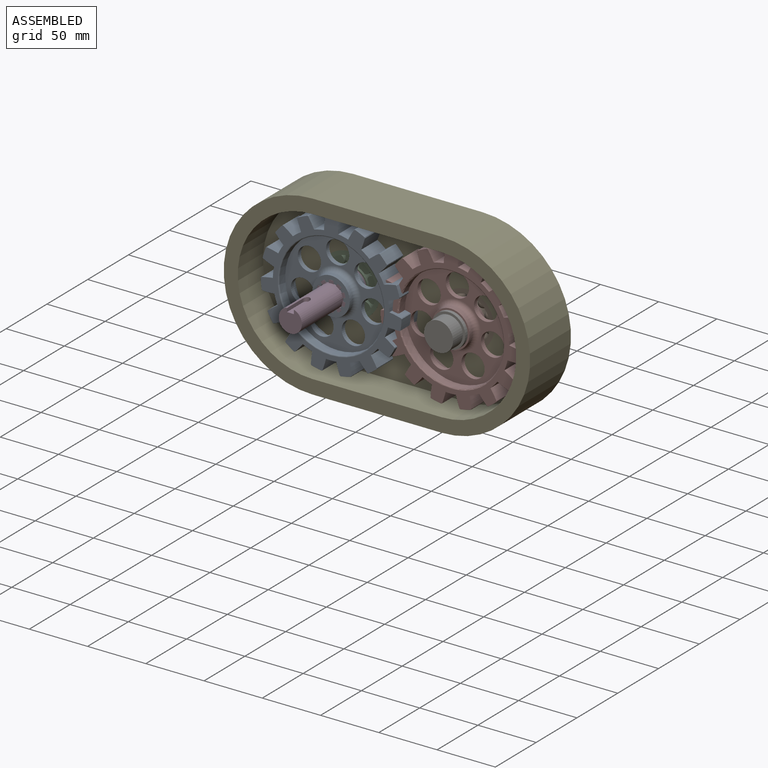
[diagram: assembled view]
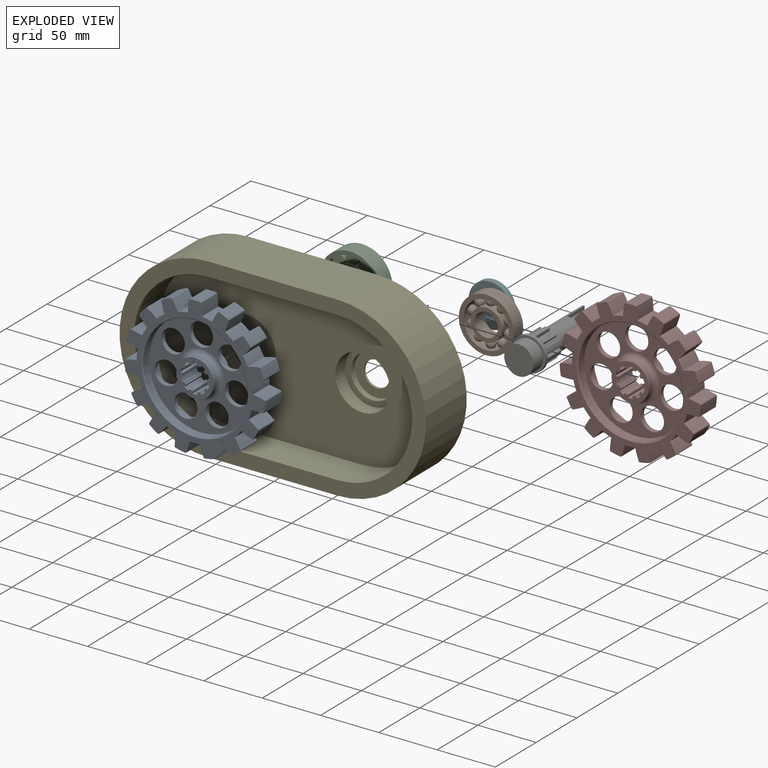
[diagram: exploded view]
GUIDED TOUR — MATED ASSEMBLY (Onshape document 9e6209f3939cb1e09e4f1f23, AutoMate assembly 9e6209f3939cb1e09e4f1f23_bf74c1615100c7fbdbf66b52_d9da05bd874bb70b420e9326_default)

This assembly has 8 components, labeled P0..P7 below (a component is one placed occurrence of a part; the same part can appear more than once), held together by 6 mates. A mate is a constraint between two components; its type names the relative motion it leaves free:
  FASTENED — locks the two components together rigidly (no relative motion),
  REVOLUTE — leaves rotation about the listed axis free (a hinge).
Axis/direction vectors are unit vectors and 'through' points are millimeter coordinates, both in the assembly's world frame.

MATES
  1. FASTENED "Fastened 2": P0 <-> P3, direction (0.000, 1.000, 0.000) through (-44.32, 3.27, -0.15) mm
  2. FASTENED "Fastened 1": P2 <-> P4, direction (0.000, 1.000, 0.000) through (-44.32, 21.27, -0.15) mm
  3. FASTENED "Fastened 4": P6 <-> P7, direction (0.000, 1.000, 0.000) through (56.14, -13.48, -0.15) mm
  4. FASTENED "Fastened 3": P5 <-> P4, direction (0.000, 1.000, 0.000) through (56.14, 23.27, -0.15) mm
  5. REVOLUTE "Revolute 2": P7 <-> P1, axis (0.000, 1.000, 0.000) through (56.14, 6.52, -0.15) mm
  6. REVOLUTE "Revolute 1": P3 <-> P2, axis (0.000, 1.000, 0.000) through (-44.32, 6.27, -0.15) mm

ASSEMBLY ORDER
  1. P2 — the base component [order heuristic]
  2. P1 [order heuristic]
  3. P3 [order heuristic]
  4. P4 [order heuristic]
  5. P6 [order heuristic]
  6. P7 [order heuristic]
  7. P0 [order heuristic]
  8. P5 [order heuristic]
Order-tag legend:
  [order heuristic] — this assembly is geometrically interlocked (no collision-free removal order exists), so components are listed in mate-graph order; insertion feasibility is not verified.

Of the 8 components, 4 carry the full construction recipe — the FeatureScript program that regenerates the part's solid from scratch; the rest are supplied as boundary geometry only.
Each toured component is shown spotlighted twice — in the assembled view, then in the exploded view, where a leader line traces a displaced component back to its assembled socket (saturated green if recipe-attached, orange if geometry-only; every other component desaturated gray) — followed by its recipe or geometry summary and the mates that hold it.
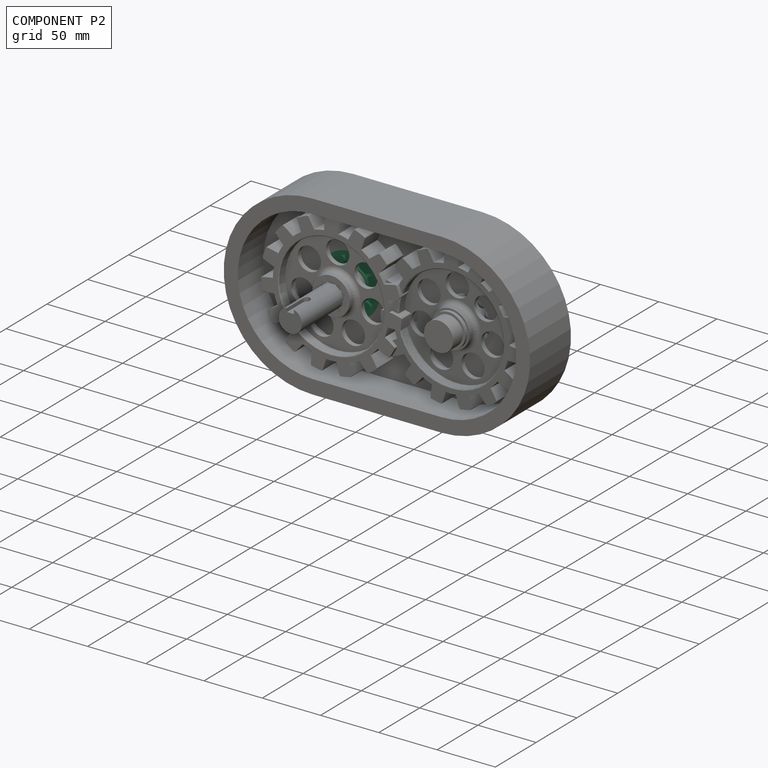
[diagram: component P2 — assembled]
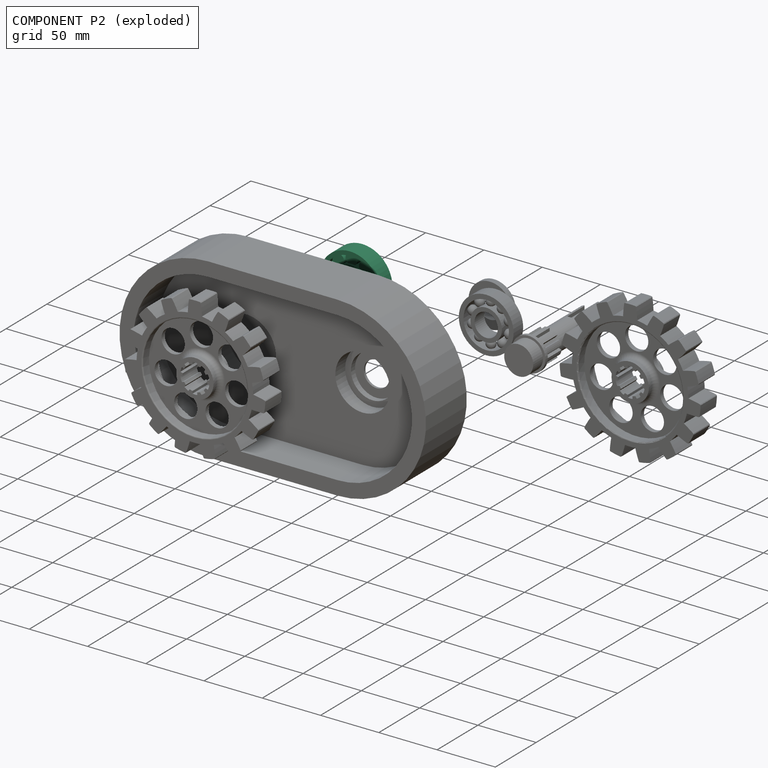
[diagram: component P2 — exploded]
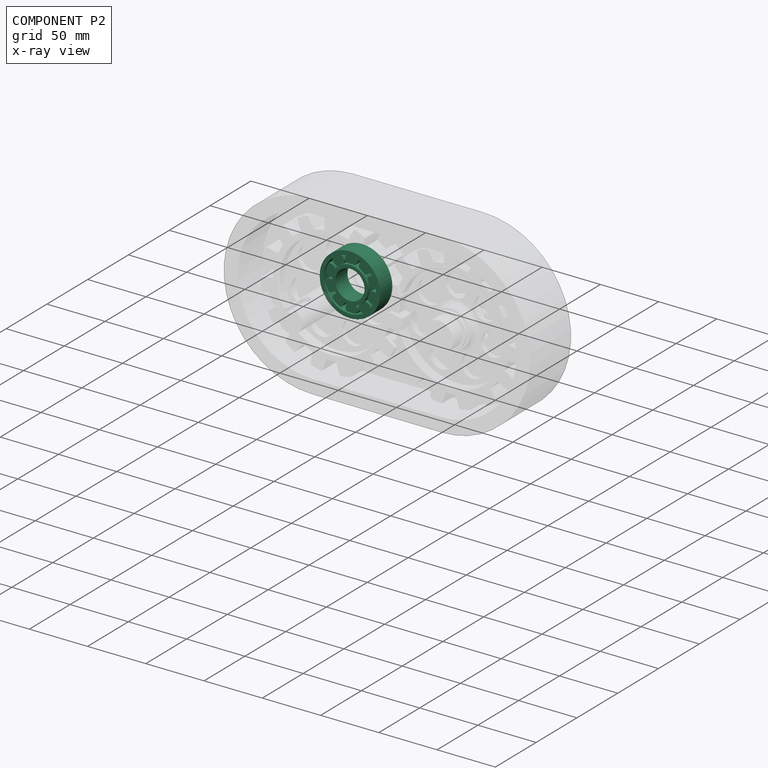
[diagram: component P2 — x-ray view]
COMPONENT P2 — recipe-attached (CADFS 00458496, mesh-verified: the recipe's output STEP matches this component's geometry to below the mesh-comparison resolution (tessellation chordal tolerance ~0.113 mm)).
Held by: FASTENED mate "Fastened 1" to P4; REVOLUTE mate "Revolute 1" to P3.
Construction recipe (FeatureScript — the CAD program that rebuilds this solid; sketch coordinates are in the units given by the * unit suffixes, e.g. mm):

FeatureScript 1549;
import(path : "onshape/std/geometry.fs", version : "1549.0");
import(path : "onshape/std/common.fs", version : "1549.0");
const mm = millimeter;
const VERTEX = EntityType.VERTEX;
const EDGE = EntityType.EDGE;
const FACE = EntityType.FACE;
const BODY = EntityType.BODY;
function v(x, y){return vector(x, y);}
function OD(order){return orderDisambiguation(order);}
function OSD(set){return originalSetDisambiguation(set);}
function TD(topology){return topologyDisambiguation(topology);}
function TDD(query){return trueDependencyDisambiguation(query);}
function sQuery(a, b, c) {return sketchEntityQuery(a, b, c);}

annotation { "Feature Type Name" : "Feature", "Feature Type Description" : "" }
export const myFeature = defineFeature(function(context is Context, id is Id, definition is map)
    precondition{}
    {
        {
            var Q0;
            Q0=qCreatedBy(makeId("Front.planeOp"),FACE);
            var sketch = newSketch(context, id + "F0", { "sketchPlane" : qUnion([Q0])});
            skCircle(sketch, "E0", {"center": v(0, 0) * mm, "radius": 12.5 * mm});
            skCircle(sketch, "E1", {"center": v(0, 0) * mm, "radius": 26 * mm});
            skLineSegment(sketch, "E2.anchor2", {"start": v(0, -14.42) * mm, "end": v(0, -15.5) * mm, "construction": true});
            skPoint(sketch, "E3.orphan", {"position": v(9.11, 12.54) * mm});
            skPoint(sketch, "E4.orphan", {"position": v(14.74, 4.79) * mm});
            skPoint(sketch, "E5.orphan", {"position": v(14.74, -4.79) * mm});
            skPoint(sketch, "E6.orphan", {"position": v(9.11, -12.54) * mm});
            skPoint(sketch, "E7.orphan", {"position": v(0, -22.5) * mm});
            skPoint(sketch, "E8.orphan", {"position": v(0, 22.5) * mm});
            skPoint(sketch, "E2.anchor1.end.orphan", {"position": v(0, 15.5) * mm});
            skCircle(sketch, "E9", {"center": v(0, 0) * mm, "radius": 15.5 * mm});
            skCircle(sketch, "E10", {"center": v(0, 0) * mm, "radius": 22.5 * mm});
            skSolve(sketch);
        }
        {
            var Q0;
            Q0=makeQuery(id+"F0.imprint","IMPRINT",FACE,{"disambiguationData":[TD([[makeQuery(id+"F0.imprint","IMPRINT",EDGE,{"derivedFrom":sQuery(id+"F0.wireOp",EDGE,"E1")}),1.0]])]});
            extrude(context, id + "F1", {"entities" : qUnion([Q0]), "oppositeDirection" : true, "depth" : 15 * mm, "offsetDistance" : 25 * mm});
        }
        {
            var Q0;
            Q0=qCreatedBy(makeId("Front.planeOp"),FACE);
            cPlane(context, id + "F2", {"entities" : qUnion([Q0]), "cplaneType" : CPlaneType.OFFSET, "offset" : 2 * mm, "oppositeDirection" : true, "width" : 150 * mm, "height" : 150 * mm});
        }
        {
            var Q0;
            Q0=qCreatedBy(id+"F2.planeOp",FACE);
            var sketch = newSketch(context, id + "F3", { "sketchPlane" : qUnion([Q0])});
            skCircle(sketch, "E11", {"center": v(0, -19.42) * mm, "radius": 5.04 * mm});
            skCircle(sketch, "E12.1.0", {"center": v(11.41, -15.7) * mm, "radius": 5.04 * mm});
            skCircle(sketch, "E12.2.0", {"center": v(18.47, -6) * mm, "radius": 5.04 * mm});
            skCircle(sketch, "E12.3.0", {"center": v(18.47, 6) * mm, "radius": 5.04 * mm});
            skCircle(sketch, "E12.4.0", {"center": v(11.41, 15.7) * mm, "radius": 5.04 * mm});
            skCircle(sketch, "E12.5.0", {"center": v(0, 19.42) * mm, "radius": 5.04 * mm});
            skCircle(sketch, "E12.6.0", {"center": v(-11.41, 15.7) * mm, "radius": 5.04 * mm});
            skCircle(sketch, "E12.7.0", {"center": v(-18.47, 6) * mm, "radius": 5.04 * mm});
            skCircle(sketch, "E12.8.0", {"center": v(-18.47, -6) * mm, "radius": 5.04 * mm});
            skCircle(sketch, "E12.9.0", {"center": v(-11.41, -15.7) * mm, "radius": 5.04 * mm});
            skPoint(sketch, "E12.center", {"position": v(0, 0) * mm});
            skSolve(sketch);
        }
        {
            var Q0;
            Q0 = qSketchRegion(id + "F3", true);
            extrude(context, id + "F4", {"entities" : qUnion([Q0]), "operationType" : NewBodyOperationType.ADD, "oppositeDirection" : true, "depth" : 11 * mm});
        }
        {
            var Q0;
            Q0=makeQuery(id+"F0.imprint","IMPRINT",FACE,{"disambiguationData":[TD([[makeQuery(id+"F0.imprint","IMPRINT",EDGE,{"derivedFrom":sQuery(id+"F0.wireOp",EDGE,"E0")}),-1.0]])]});
            extrude(context, id + "F5", {"entities" : qUnion([Q0]), "operationType" : NewBodyOperationType.ADD, "oppositeDirection" : true, "depth" : 15 * mm});
        }
    });
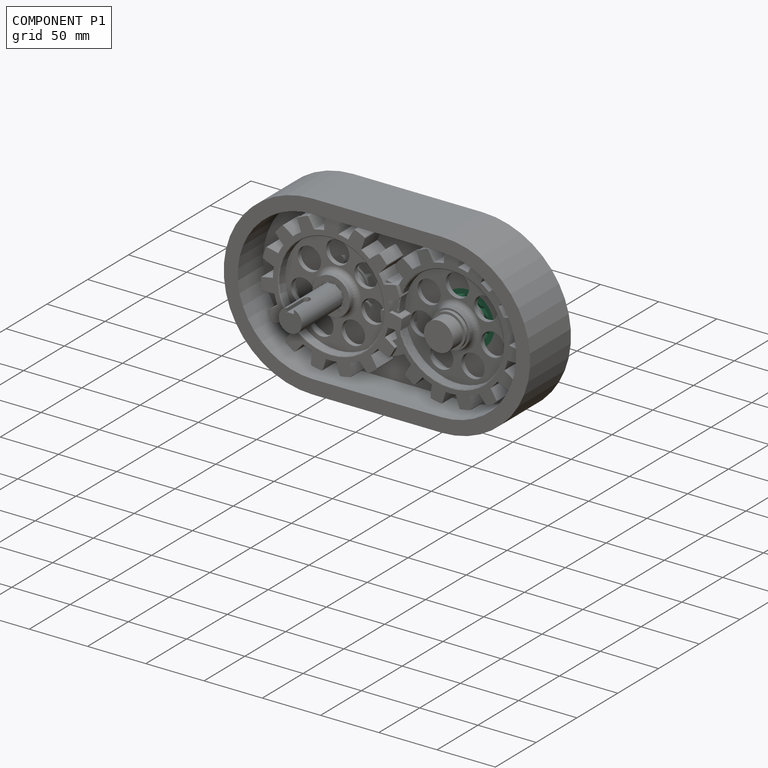
[diagram: component P1 — assembled]
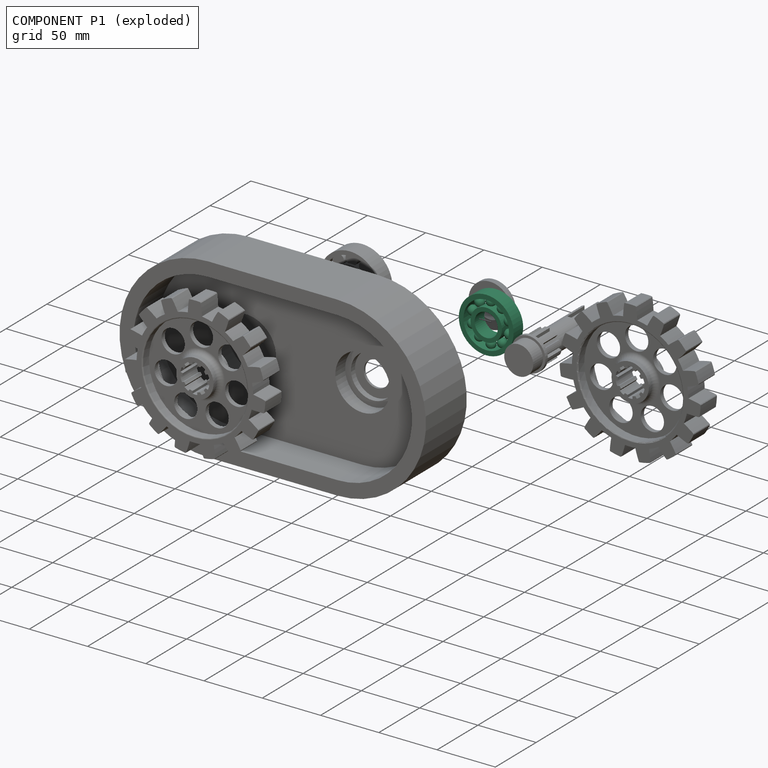
[diagram: component P1 — exploded]
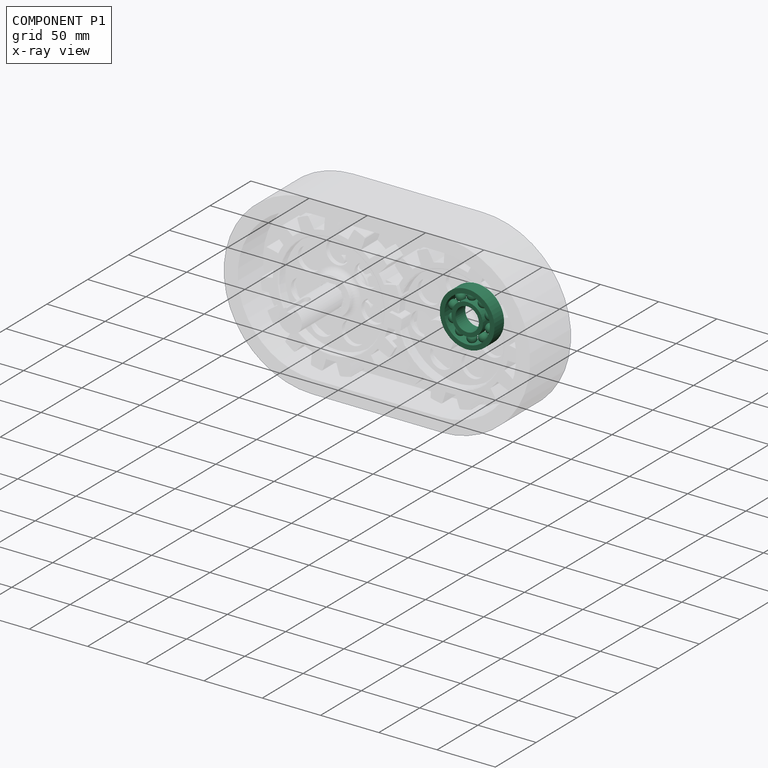
[diagram: component P1 — x-ray view]
COMPONENT P1 — recipe-attached (CADFS 00568547, mesh-verified: the recipe's output STEP matches this component's geometry to below the mesh-comparison resolution (tessellation chordal tolerance ~0.101 mm)).
Held by: REVOLUTE mate "Revolute 2" to P7.
Construction recipe (FeatureScript — the CAD program that rebuilds this solid; sketch coordinates are in the units given by the * unit suffixes, e.g. mm):

FeatureScript 1511;
import(path : "onshape/std/geometry.fs", version : "1511.0");
import(path : "onshape/std/common.fs", version : "1511.0");
const mm = millimeter;
const VERTEX = EntityType.VERTEX;
const EDGE = EntityType.EDGE;
const FACE = EntityType.FACE;
const BODY = EntityType.BODY;
function v(x, y){return vector(x, y);}
function OD(order){return orderDisambiguation(order);}
function OSD(set){return originalSetDisambiguation(set);}
function TD(topology){return topologyDisambiguation(topology);}
function TDD(query){return trueDependencyDisambiguation(query);}
function sQuery(a, b, c) {return sketchEntityQuery(a, b, c);}

annotation { "Feature Type Name" : "Feature", "Feature Type Description" : "" }
export const myFeature = defineFeature(function(context is Context, id is Id, definition is map)
    precondition{}
    {
        {
            var Q0;
            Q0=qCreatedBy(makeId("Right.planeOp"),FACE);
            var sketch = newSketch(context, id + "F0", { "sketchPlane" : qUnion([Q0])});
            skLineSegment(sketch, "E0.bottom", {"start": v(0, 23.5) * mm, "end": v(11.74, 23.5) * mm});
            skLineSegment(sketch, "E0.top", {"start": v(0, 19.5) * mm, "end": v(11.74, 19.5) * mm});
            skLineSegment(sketch, "E0.left", {"start": v(0, 23.5) * mm, "end": v(0, 19.5) * mm});
            skLineSegment(sketch, "E0.right", {"start": v(11.74, 23.5) * mm, "end": v(11.74, 19.5) * mm});
            skLineSegment(sketch, "E1.bottom", {"start": v(0, 13.5) * mm, "end": v(12, 13.5) * mm});
            skLineSegment(sketch, "E1.top", {"start": v(0, 10) * mm, "end": v(12, 10) * mm});
            skLineSegment(sketch, "E1.left", {"start": v(0, 13.5) * mm, "end": v(0, 10) * mm});
            skLineSegment(sketch, "E1.right", {"start": v(12, 13.5) * mm, "end": v(12, 10) * mm});
            skLineSegment(sketch, "E2", {"start": v(0, 0) * mm, "end": v(22.85, 0) * mm, "construction": true});
            skSolve(sketch);
        }
        {
            var Q0;
            Q0 = qSketchRegion(id + "F0", true);
            var Q1;
            Q1=sQuery(id+"F0.wireOp",EDGE,"E2");
            revolve(context, id + "F1", {"entities" : qUnion([Q0]), "axis" : qUnion([Q1]), "revolveType" : RevolveType.FULL});
        }
        {
            var Q0;
            Q0=qCreatedBy(makeId("Front.planeOp"),FACE);
            cPlane(context, id + "F2", {"entities" : qUnion([Q0]), "cplaneType" : CPlaneType.OFFSET, "offset" : 6 * mm, "oppositeDirection" : true, "width" : 150 * mm, "height" : 150 * mm});
        }
        {
            var Q0;
            Q0=qCreatedBy(id+"F2.planeOp",FACE);
            var sketch = newSketch(context, id + "F3", { "sketchPlane" : qUnion([Q0])});
            skArc(sketch, "E3", {"start": v(0, 12.5) * mm, "mid": v(4, 16.5) * mm, "end": v(0, 20.5) * mm});
            skLineSegment(sketch, "E4", {"start": v(0, 20.5) * mm, "end": v(0, 12.5) * mm});
            skPoint(sketch, "E5.orphan", {"position": v(0, 28.09) * mm});
            skSolve(sketch);
        }
        {
            var Q0;
            Q0=makeQuery(id+"F3.imprint","IMPRINT",FACE,{"disambiguationData":[TD([[makeQuery(id+"F3.imprint","IMPRINT",EDGE,{"derivedFrom":sQuery(id+"F3.wireOp",EDGE,"E3")}),1.0]])]});
            var Q1;
            Q1=sQuery(id+"F3.wireOp",EDGE,"E4");
            revolve(context, id + "F4", {"entities" : qUnion([Q0]), "axis" : qUnion([Q1]), "revolveType" : RevolveType.FULL});
        }
        {
            var Q0;
            Q0=makeQuery(id+"F4.opRevolve","SWEPT_BODY",BODY,{"disambiguationData":[OSD([sQuery(id+"F3.wireOp",EDGE,"E3"),sQuery(id+"F3.wireOp",EDGE,"E4")])]});
            var Q1;
            Q1=makeQuery(id+"F1.opRevolve","SWEPT_EDGE",EDGE,{"disambiguationData":[OSD([sQuery(id+"F0.wireOp",EDGE,"E0.bottom"),sQuery(id+"F0.wireOp",EDGE,"E0.left")])]});
            circularPattern(context, id + "F5", {"operationType" : NewBodyOperationType.ADD, "entities" : qUnion([Q0]), "axis" : qUnion([Q1]), "angle" : 360 * degree, "instanceCount" : 10, "equalSpace" : true});
        }
    });
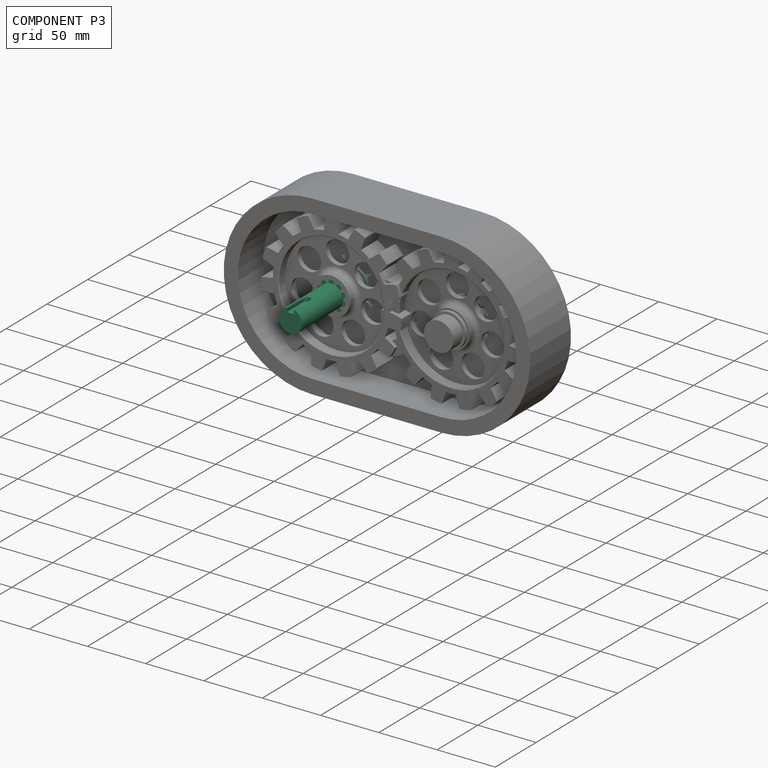
[diagram: component P3 — assembled]
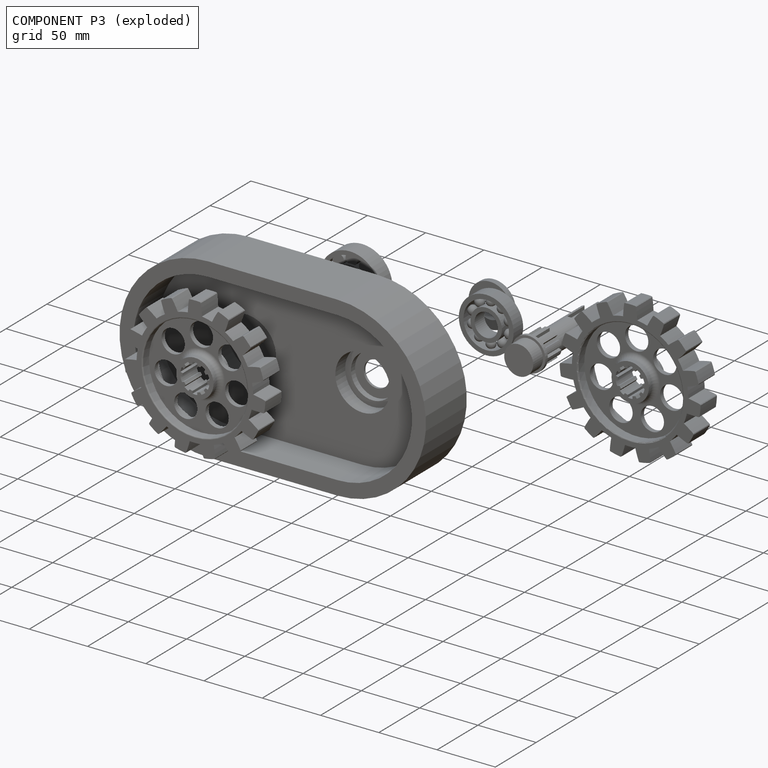
[diagram: component P3 — exploded]
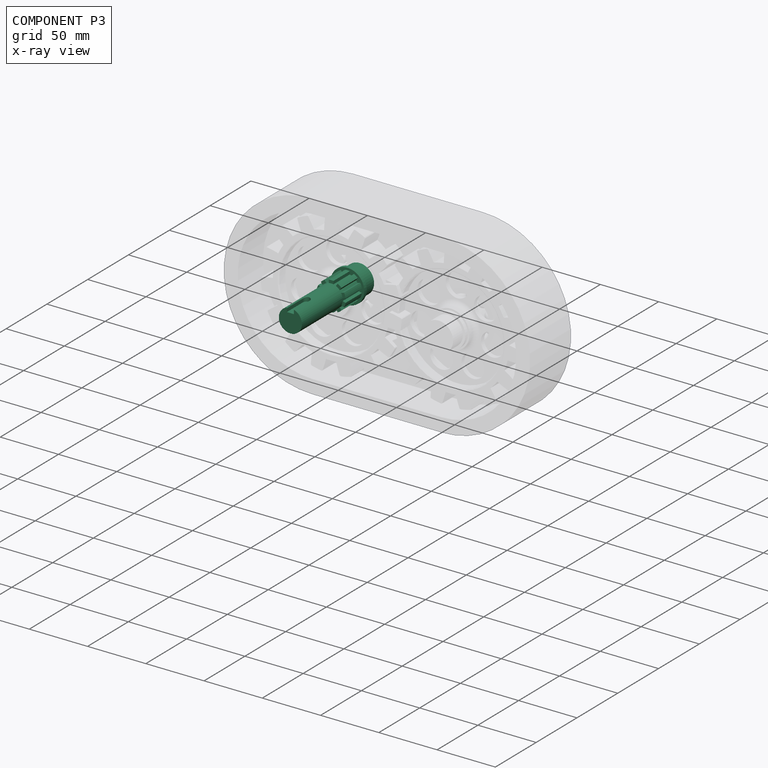
[diagram: component P3 — x-ray view]
COMPONENT P3 — recipe-attached (CADFS 00568545, mesh-verified: the recipe's output STEP matches this component's geometry to below the mesh-comparison resolution (tessellation chordal tolerance ~0.142 mm)).
Held by: FASTENED mate "Fastened 2" to P0; REVOLUTE mate "Revolute 1" to P2.
Construction recipe (FeatureScript — the CAD program that rebuilds this solid; sketch coordinates are in the units given by the * unit suffixes, e.g. mm):

FeatureScript 1511;
import(path : "onshape/std/geometry.fs", version : "1511.0");
import(path : "onshape/std/common.fs", version : "1511.0");
const mm = millimeter;
const VERTEX = EntityType.VERTEX;
const EDGE = EntityType.EDGE;
const FACE = EntityType.FACE;
const BODY = EntityType.BODY;
function v(x, y){return vector(x, y);}
function OD(order){return orderDisambiguation(order);}
function OSD(set){return originalSetDisambiguation(set);}
function TD(topology){return topologyDisambiguation(topology);}
function TDD(query){return trueDependencyDisambiguation(query);}
function sQuery(a, b, c) {return sketchEntityQuery(a, b, c);}

annotation { "Feature Type Name" : "Feature", "Feature Type Description" : "" }
export const myFeature = defineFeature(function(context is Context, id is Id, definition is map)
    precondition{}
    {
        {
            var Q0;
            Q0=qCreatedBy(makeId("Front.planeOp"),FACE);
            var sketch = newSketch(context, id + "F0", { "sketchPlane" : qUnion([Q0])});
            skCircle(sketch, "E0", {"center": v(0, 0) * mm, "radius": 12.45 * mm});
            skSolve(sketch);
        }
        {
            var Q0;
            Q0 = qSketchRegion(id + "F0", true);
            extrude(context, id + "F1", {"entities" : qUnion([Q0]), "oppositeDirection" : true, "depth" : 12 * mm, "offsetDistance" : 25 * mm});
        }
        {
            var Q0;
            Q0=qCreatedBy(makeId("Front.planeOp"),FACE);
            var sketch = newSketch(context, id + "F2", { "sketchPlane" : qUnion([Q0])});
            skCircle(sketch, "E1", {"center": v(0, 0) * mm, "radius": 14.5 * mm});
            skSolve(sketch);
        }
        {
            var Q0;
            Q0 = qSketchRegion(id + "F2", true);
            extrude(context, id + "F3", {"entities" : qUnion([Q0]), "operationType" : NewBodyOperationType.ADD, "depth" : 3 * mm, "offsetDistance" : 25 * mm});
        }
        {
            var Q0;
            Q0=makeQuery(id+"F3.opExtrude","CAP_FACE",FACE,{"disambiguationData":[OSD([sQuery(id+"F2.wireOp",EDGE,"E1")])],"isStart":false});
            var sketch = newSketch(context, id + "F4", { "sketchPlane" : qUnion([Q0])});
            skCircle(sketch, "E2", {"center": v(0, 0) * mm, "radius": 9.95 * mm});
            skSolve(sketch);
        }
        {
            var Q0;
            Q0 = qSketchRegion(id + "F4", true);
            extrude(context, id + "F5", {"entities" : qUnion([Q0]), "operationType" : NewBodyOperationType.ADD, "depth" : 70 * mm, "offsetDistance" : 25 * mm});
        }
        {
            var Q0;
            Q0=makeQuery(id+"F3.opExtrude","CAP_FACE",FACE,{"disambiguationData":[OSD([sQuery(id+"F2.wireOp",EDGE,"E1")])],"isStart":false});
            var sketch = newSketch(context, id + "F6", { "sketchPlane" : qUnion([Q0])});
            skArc(sketch, "E3", {"start": v(2, 12.34) * mm, "mid": v(0, 12.5) * mm, "end": v(-2, 12.34) * mm});
            skLineSegment(sketch, "E4", {"start": v(-2, 12.34) * mm, "end": v(-2, 5.62) * mm});
            skLineSegment(sketch, "E5", {"start": v(-2, 5.62) * mm, "end": v(2, 5.62) * mm});
            skLineSegment(sketch, "E6", {"start": v(2, 5.62) * mm, "end": v(2, 12.34) * mm});
            skPoint(sketch, "E7.orphan", {"position": v(2, 18.42) * mm});
            skLineSegment(sketch, "E8.1.0", {"start": v(-8.87, 8.8) * mm, "end": v(-4.92, 3.37) * mm});
            skArc(sketch, "E8.1.1", {"start": v(-5.63, 11.16) * mm, "mid": v(-7.35, 10.11) * mm, "end": v(-8.87, 8.8) * mm});
            skLineSegment(sketch, "E8.1.2", {"start": v(-1.69, 5.72) * mm, "end": v(-5.63, 11.16) * mm});
            skLineSegment(sketch, "E8.1.3", {"start": v(-4.92, 3.37) * mm, "end": v(-1.69, 5.72) * mm});
            skLineSegment(sketch, "E8.2.0", {"start": v(-12.35, 1.91) * mm, "end": v(-5.96, -0.17) * mm});
            skArc(sketch, "E8.2.1", {"start": v(-11.12, 5.72) * mm, "mid": v(-11.89, 3.86) * mm, "end": v(-12.35, 1.91) * mm});
            skLineSegment(sketch, "E8.2.2", {"start": v(-4.73, 3.64) * mm, "end": v(-11.12, 5.72) * mm});
            skLineSegment(sketch, "E8.2.3", {"start": v(-5.96, -0.17) * mm, "end": v(-4.73, 3.64) * mm});
            skLineSegment(sketch, "E8.3.0", {"start": v(-11.12, -5.72) * mm, "end": v(-4.73, -3.64) * mm});
            skArc(sketch, "E8.3.1", {"start": v(-12.35, -1.91) * mm, "mid": v(-11.89, -3.86) * mm, "end": v(-11.12, -5.72) * mm});
            skLineSegment(sketch, "E8.3.2", {"start": v(-5.96, 0.17) * mm, "end": v(-12.35, -1.91) * mm});
            skLineSegment(sketch, "E8.3.3", {"start": v(-4.73, -3.64) * mm, "end": v(-5.96, 0.17) * mm});
            skLineSegment(sketch, "E8.4.0", {"start": v(-5.63, -11.16) * mm, "end": v(-1.69, -5.72) * mm});
            skArc(sketch, "E8.4.1", {"start": v(-8.87, -8.8) * mm, "mid": v(-7.35, -10.11) * mm, "end": v(-5.63, -11.16) * mm});
            skLineSegment(sketch, "E8.4.2", {"start": v(-4.92, -3.37) * mm, "end": v(-8.87, -8.8) * mm});
            skLineSegment(sketch, "E8.4.3", {"start": v(-1.69, -5.72) * mm, "end": v(-4.92, -3.37) * mm});
            skLineSegment(sketch, "E8.5.0", {"start": v(2, -12.34) * mm, "end": v(2, -5.62) * mm});
            skArc(sketch, "E8.5.1", {"start": v(-2, -12.34) * mm, "mid": v(0, -12.5) * mm, "end": v(2, -12.34) * mm});
            skLineSegment(sketch, "E8.5.2", {"start": v(-2, -5.62) * mm, "end": v(-2, -12.34) * mm});
            skLineSegment(sketch, "E8.5.3", {"start": v(2, -5.62) * mm, "end": v(-2, -5.62) * mm});
            skLineSegment(sketch, "E8.6.0", {"start": v(8.87, -8.8) * mm, "end": v(4.92, -3.37) * mm});
            skArc(sketch, "E8.6.1", {"start": v(5.63, -11.16) * mm, "mid": v(7.35, -10.11) * mm, "end": v(8.87, -8.8) * mm});
            skLineSegment(sketch, "E8.6.2", {"start": v(1.69, -5.72) * mm, "end": v(5.63, -11.16) * mm});
            skLineSegment(sketch, "E8.6.3", {"start": v(4.92, -3.37) * mm, "end": v(1.69, -5.72) * mm});
            skLineSegment(sketch, "E8.7.0", {"start": v(12.35, -1.91) * mm, "end": v(5.96, 0.17) * mm});
            skArc(sketch, "E8.7.1", {"start": v(11.12, -5.72) * mm, "mid": v(11.89, -3.86) * mm, "end": v(12.35, -1.91) * mm});
            skLineSegment(sketch, "E8.7.2", {"start": v(4.73, -3.64) * mm, "end": v(11.12, -5.72) * mm});
            skLineSegment(sketch, "E8.7.3", {"start": v(5.96, 0.17) * mm, "end": v(4.73, -3.64) * mm});
            skLineSegment(sketch, "E8.8.0", {"start": v(11.12, 5.72) * mm, "end": v(4.73, 3.64) * mm});
            skArc(sketch, "E8.8.1", {"start": v(12.35, 1.91) * mm, "mid": v(11.89, 3.86) * mm, "end": v(11.12, 5.72) * mm});
            skLineSegment(sketch, "E8.8.2", {"start": v(5.96, -0.17) * mm, "end": v(12.35, 1.91) * mm});
            skLineSegment(sketch, "E8.8.3", {"start": v(4.73, 3.64) * mm, "end": v(5.96, -0.17) * mm});
            skLineSegment(sketch, "E8.9.0", {"start": v(5.63, 11.16) * mm, "end": v(1.69, 5.72) * mm});
            skArc(sketch, "E8.9.1", {"start": v(8.87, 8.8) * mm, "mid": v(7.35, 10.11) * mm, "end": v(5.63, 11.16) * mm});
            skLineSegment(sketch, "E8.9.2", {"start": v(4.92, 3.37) * mm, "end": v(8.87, 8.8) * mm});
            skLineSegment(sketch, "E8.9.3", {"start": v(1.69, 5.72) * mm, "end": v(4.92, 3.37) * mm});
            skSolve(sketch);
        }
        {
            var Q0;
            {var subQ0=sQuery(id+"F6.wireOp",EDGE,"E3");Q0=makeQuery(id+"F6.imprint","IMPRINT",FACE,{"disambiguationData":[TD([[makeQuery(id+"F6.imprint","IMPRINT",EDGE,{"derivedFrom":subQ0}),1.0]])]});}
            var Q1;
            {var subQ0=sQuery(id+"F6.wireOp",EDGE,"E8.9.1");Q1=makeQuery(id+"F6.imprint","IMPRINT",FACE,{"disambiguationData":[TD([[makeQuery(id+"F6.imprint","IMPRINT",EDGE,{"derivedFrom":subQ0}),1.0]])]});}
            var Q2;
            {var subQ0=sQuery(id+"F6.wireOp",EDGE,"E8.8.1");Q2=makeQuery(id+"F6.imprint","IMPRINT",FACE,{"disambiguationData":[TD([[makeQuery(id+"F6.imprint","IMPRINT",EDGE,{"derivedFrom":subQ0}),1.0]])]});}
            var Q3;
            {var subQ0=sQuery(id+"F6.wireOp",EDGE,"E8.7.1");Q3=makeQuery(id+"F6.imprint","IMPRINT",FACE,{"disambiguationData":[TD([[makeQuery(id+"F6.imprint","IMPRINT",EDGE,{"derivedFrom":subQ0}),1.0]])]});}
            var Q4;
            {var subQ0=sQuery(id+"F6.wireOp",EDGE,"E8.6.1");Q4=makeQuery(id+"F6.imprint","IMPRINT",FACE,{"disambiguationData":[TD([[makeQuery(id+"F6.imprint","IMPRINT",EDGE,{"derivedFrom":subQ0}),1.0]])]});}
            var Q5;
            {var subQ0=sQuery(id+"F6.wireOp",EDGE,"E8.5.1");Q5=makeQuery(id+"F6.imprint","IMPRINT",FACE,{"disambiguationData":[TD([[makeQuery(id+"F6.imprint","IMPRINT",EDGE,{"derivedFrom":subQ0}),1.0]])]});}
            var Q6;
            {var subQ0=sQuery(id+"F6.wireOp",EDGE,"E8.4.1");Q6=makeQuery(id+"F6.imprint","IMPRINT",FACE,{"disambiguationData":[TD([[makeQuery(id+"F6.imprint","IMPRINT",EDGE,{"derivedFrom":subQ0}),1.0]])]});}
            var Q7;
            {var subQ0=sQuery(id+"F6.wireOp",EDGE,"E8.3.1");Q7=makeQuery(id+"F6.imprint","IMPRINT",FACE,{"disambiguationData":[TD([[makeQuery(id+"F6.imprint","IMPRINT",EDGE,{"derivedFrom":subQ0}),1.0]])]});}
            var Q8;
            {var subQ0=sQuery(id+"F6.wireOp",EDGE,"E8.2.1");Q8=makeQuery(id+"F6.imprint","IMPRINT",FACE,{"disambiguationData":[TD([[makeQuery(id+"F6.imprint","IMPRINT",EDGE,{"derivedFrom":subQ0}),1.0]])]});}
            var Q9;
            {var subQ0=sQuery(id+"F6.wireOp",EDGE,"E8.1.1");Q9=makeQuery(id+"F6.imprint","IMPRINT",FACE,{"disambiguationData":[TD([[makeQuery(id+"F6.imprint","IMPRINT",EDGE,{"derivedFrom":subQ0}),1.0]])]});}
            extrude(context, id + "F7", {"entities" : qUnion([Q0, Q1, Q2, Q3, Q4, Q5, Q6, Q7, Q8, Q9]), "operationType" : NewBodyOperationType.ADD, "depth" : 20 * mm, "offsetDistance" : 25 * mm});
        }
        {
            var Q0;
            Q0=qCreatedBy(makeId("Top.planeOp"),FACE);
            cPlane(context, id + "F8", {"entities" : qUnion([Q0]), "cplaneType" : CPlaneType.OFFSET, "offset" : 6 * mm, "width" : 150 * mm, "height" : 150 * mm});
        }
        {
            var Q0;
            Q0=qCreatedBy(id+"F8.planeOp",FACE);
            var sketch = newSketch(context, id + "F9", { "sketchPlane" : qUnion([Q0])});
            skLineSegment(sketch, "E9.top", {"start": v(-3, -79.7) * mm, "end": v(3, -79.7) * mm});
            skLineSegment(sketch, "E9.left", {"start": v(-3, -53.29) * mm, "end": v(-3, -79.7) * mm});
            skLineSegment(sketch, "E9.right", {"start": v(3, -53.29) * mm, "end": v(3, -79.7) * mm});
            skArc(sketch, "E10", {"start": v(3, -53.29) * mm, "mid": v(0, -50.29) * mm, "end": v(-3, -53.29) * mm});
            skSolve(sketch);
        }
        {
            var Q0;
            Q0=makeQuery(id+"F9.imprint","IMPRINT",FACE,{"disambiguationData":[TD([[makeQuery(id+"F9.imprint","IMPRINT",EDGE,{"derivedFrom":sQuery(id+"F9.wireOp",EDGE,"E9.top")}),1.0]])]});
            extrude(context, id + "F10", {"entities" : qUnion([Q0]), "operationType" : NewBodyOperationType.REMOVE, "depth" : 25 * mm, "offsetDistance" : 25 * mm});
        }
        {
            var Q0;
            Q0=makeQuery(id+"F10.boolean.opBoolean","INTERSECT",EDGE,{"derivedFrom":[makeQuery(id+"F5.opExtrude","SWEPT_FACE",FACE,{"disambiguationData":[OSD([sQuery(id+"F4.wireOp",EDGE,"E2")])]}),makeQuery(id+"F10.opExtrude","SWEPT_FACE",FACE,{"disambiguationData":[OSD([sQuery(id+"F9.wireOp",EDGE,"E9.left")])]})]});
            var Q1;
            Q1=makeQuery(id+"F10.boolean.opBoolean","INTERSECT",EDGE,{"derivedFrom":[makeQuery(id+"F5.opExtrude","SWEPT_FACE",FACE,{"disambiguationData":[OSD([sQuery(id+"F4.wireOp",EDGE,"E2")])]}),makeQuery(id+"F10.opExtrude","SWEPT_FACE",FACE,{"disambiguationData":[OSD([sQuery(id+"F9.wireOp",EDGE,"E9.right")])]})]});
            var Q2;
            Q2=makeQuery(id+"F10.boolean.opBoolean","INTERSECT",EDGE,{"derivedFrom":[makeQuery(id+"F5.opExtrude","SWEPT_FACE",FACE,{"disambiguationData":[OSD([sQuery(id+"F4.wireOp",EDGE,"E2")])]}),makeQuery(id+"F10.opExtrude","SWEPT_FACE",FACE,{"disambiguationData":[OSD([sQuery(id+"F9.wireOp",EDGE,"E10")])]})]});
            fillet(context, id + "F11", {"entities" : qUnion([Q0, Q1, Q2]), "radius" : 0.5 * mm, "tangentPropagation" : true, "allowEdgeOverflow" : false});
        }
    });
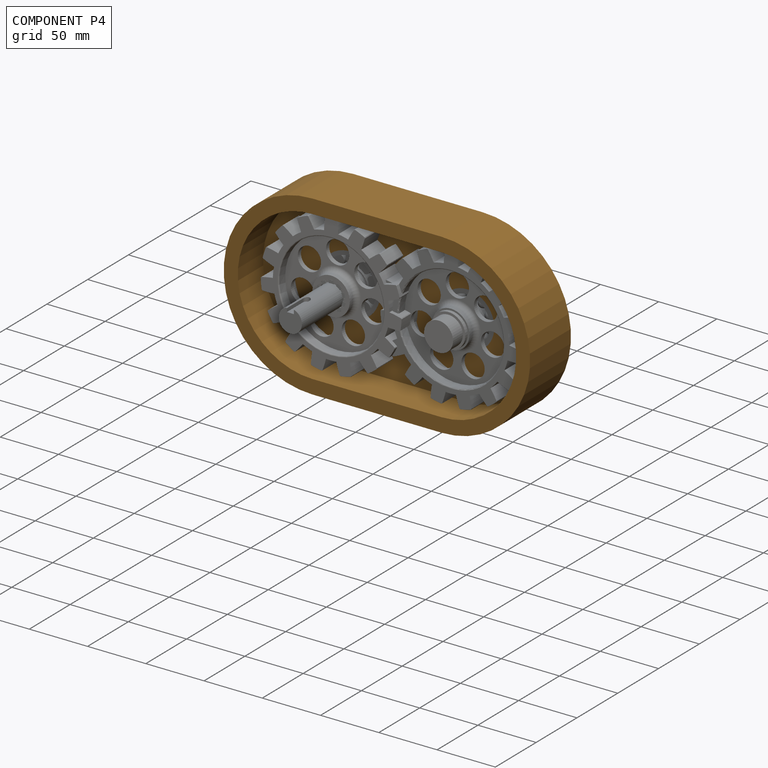
[diagram: component P4 — assembled]
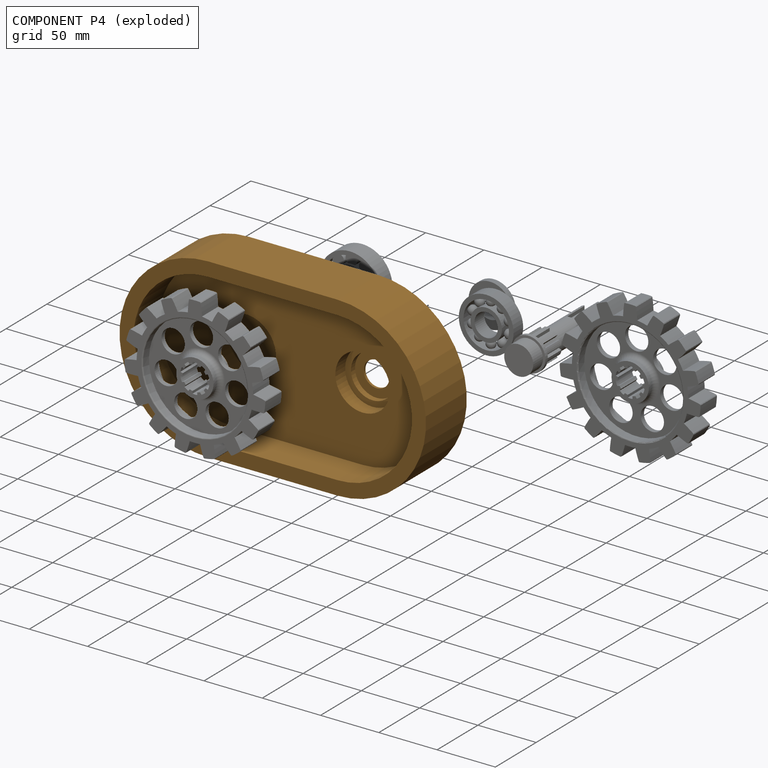
[diagram: component P4 — exploded]
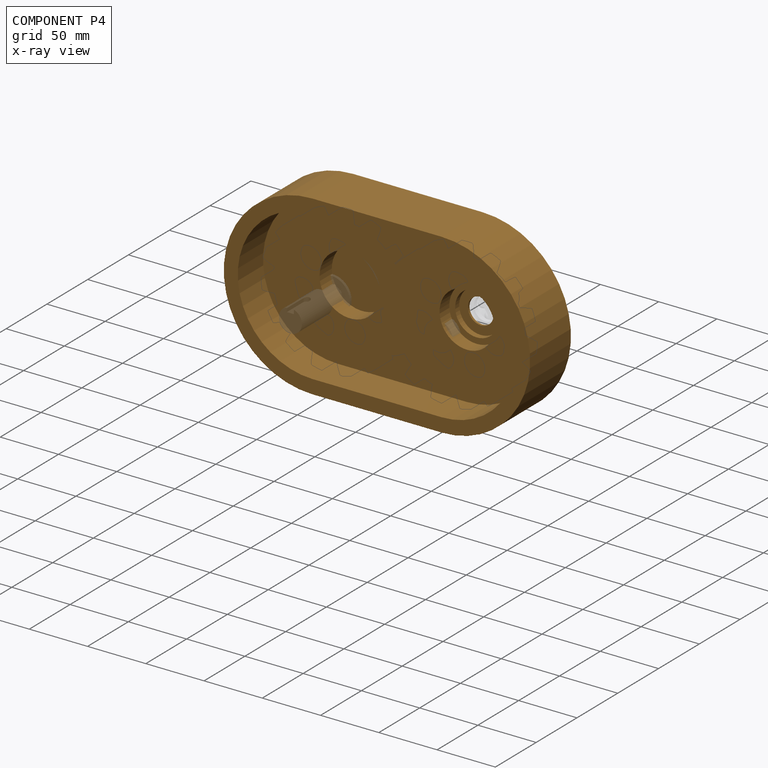
[diagram: component P4 — x-ray view]
COMPONENT P4 — geometry summary (no construction recipe available for this part):
  bounding box: 263.0 x 152.0 x 50.0 mm
  B-rep topology: 1 solid, 18 faces, 72 edges
  volume: 852726 mm^3 (43% of its bounding box)
  symmetry: mirror-symmetric across its z mid-plane
Held by: FASTENED mate "Fastened 1" to P2; FASTENED mate "Fastened 3" to P5.
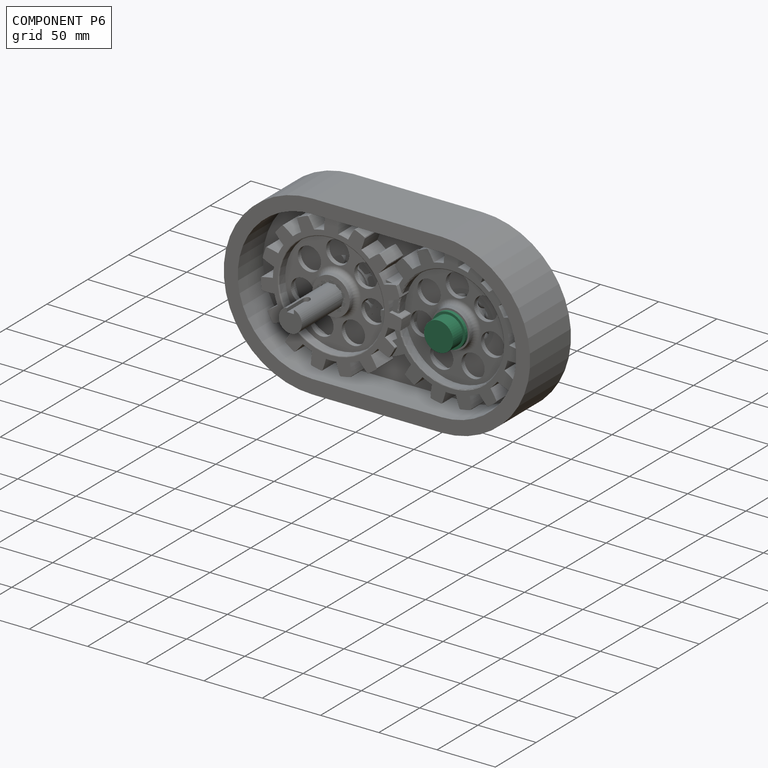
[diagram: component P6 — assembled]
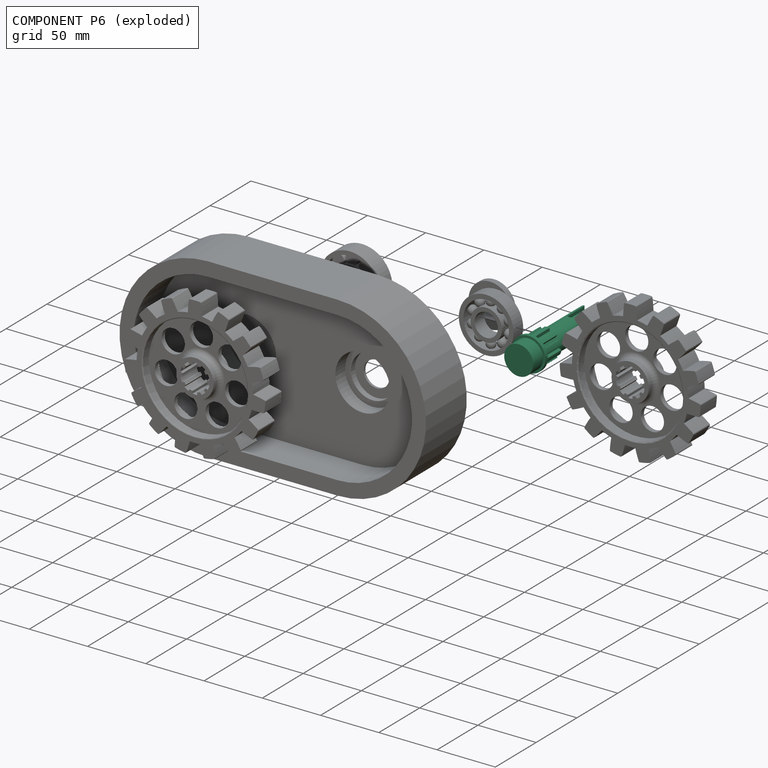
[diagram: component P6 — exploded]
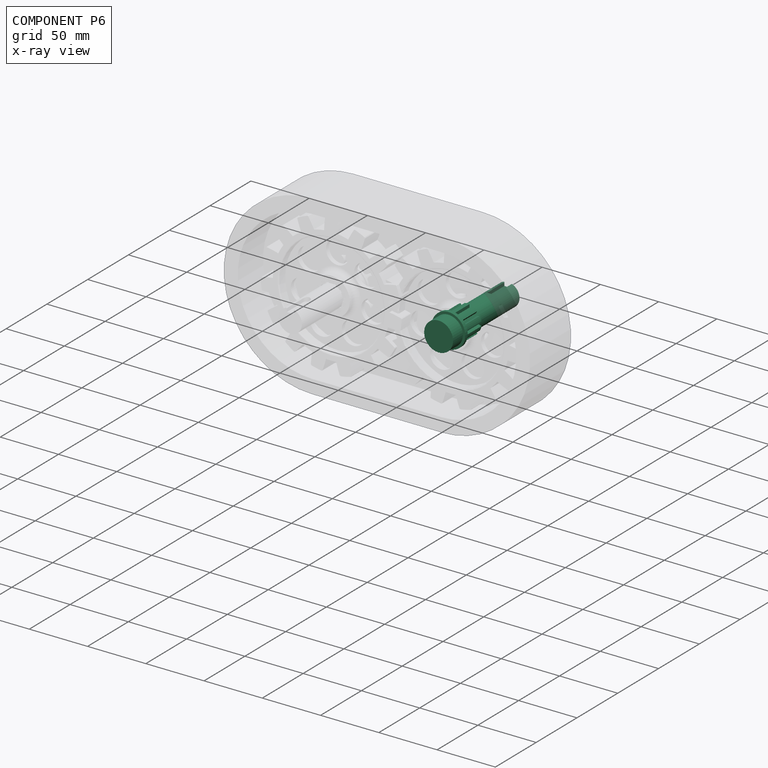
[diagram: component P6 — x-ray view]
COMPONENT P6 — same part as P3 (CADFS 00568545); its construction recipe is shown at P3.
Held by: FASTENED mate "Fastened 4" to P7.
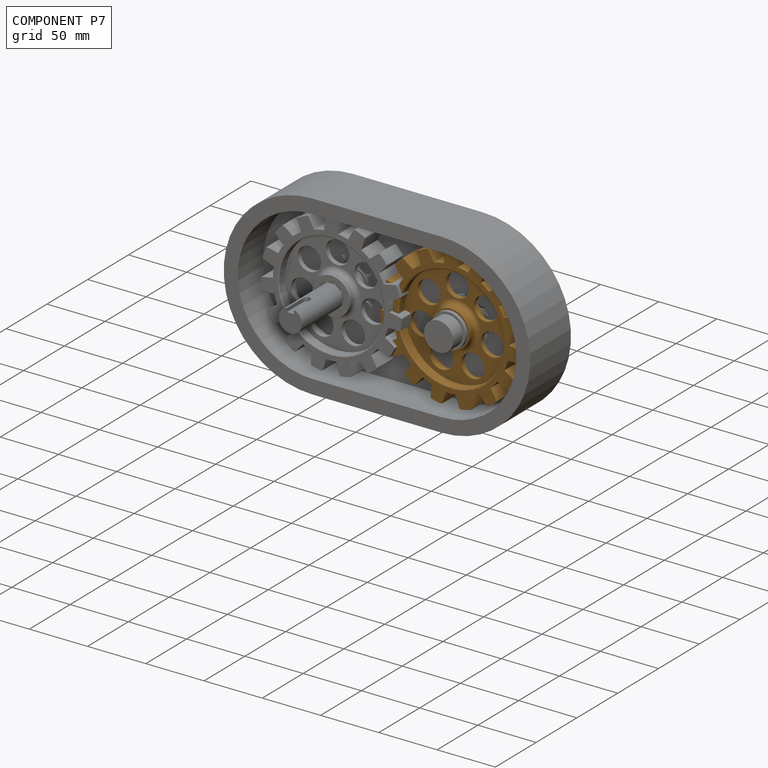
[diagram: component P7 — assembled]
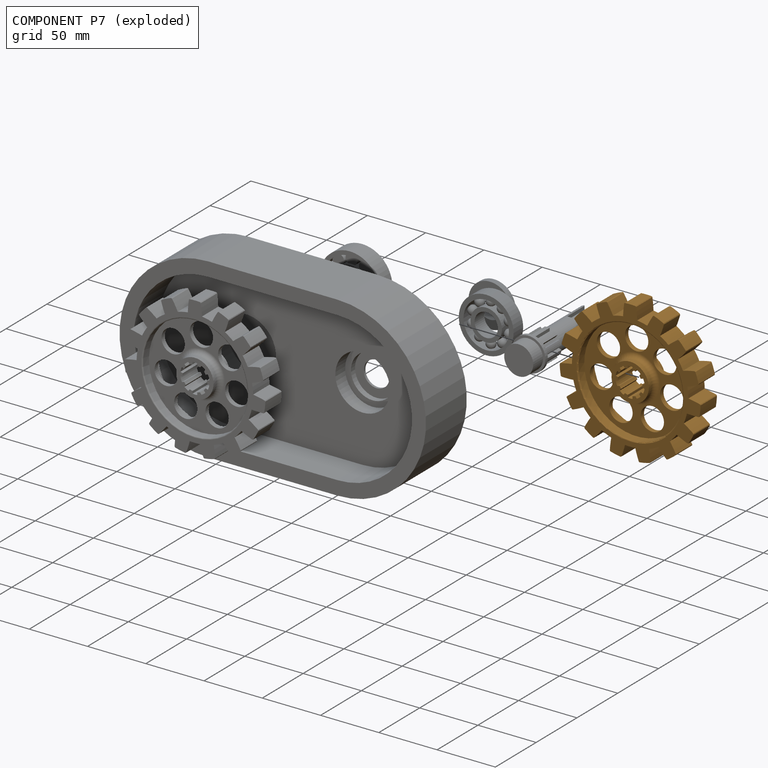
[diagram: component P7 — exploded]
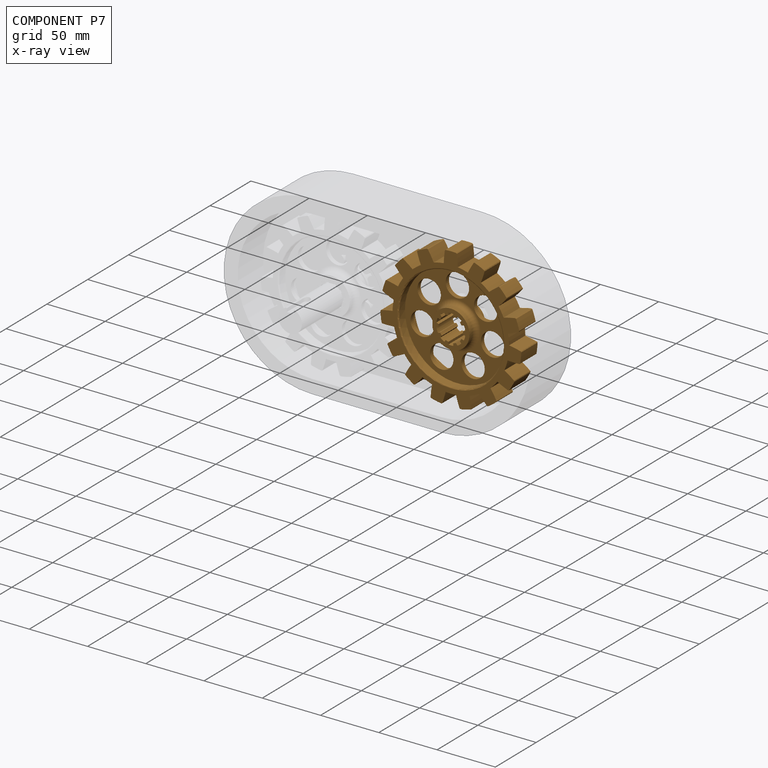
[diagram: component P7 — x-ray view]
COMPONENT P7 — geometry summary (no construction recipe available for this part):
  bounding box: 120.9 x 120.5 x 20.0 mm
  B-rep topology: 1 solid, 151 faces, 884 edges
  volume: 86928 mm^3 (30% of its bounding box)
  symmetry: 2-fold rotationally symmetric about the z axis; mirror-symmetric across its x mid-plane, y mid-plane
Held by: FASTENED mate "Fastened 4" to P6; REVOLUTE mate "Revolute 2" to P1.
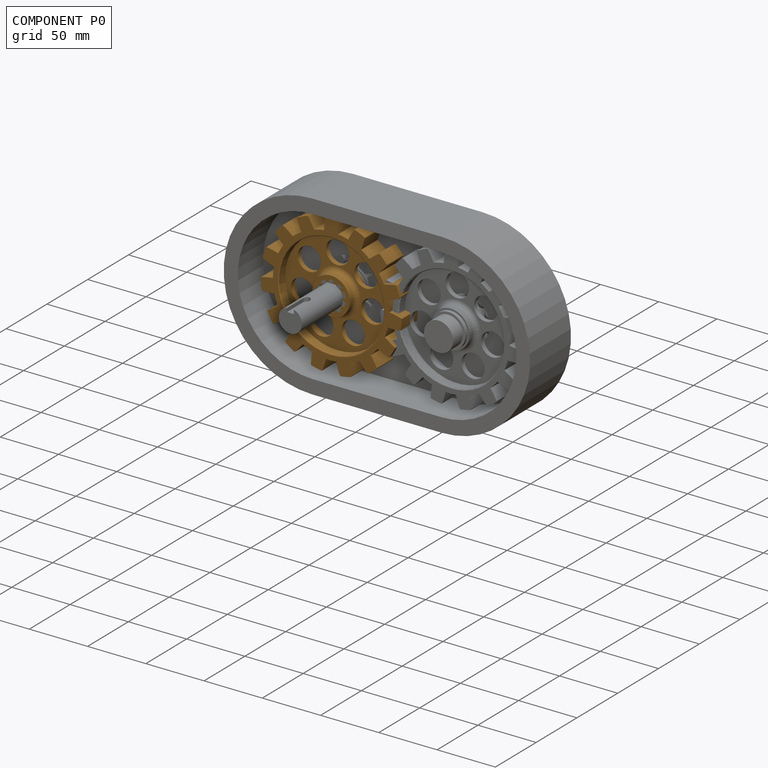
[diagram: component P0 — assembled]
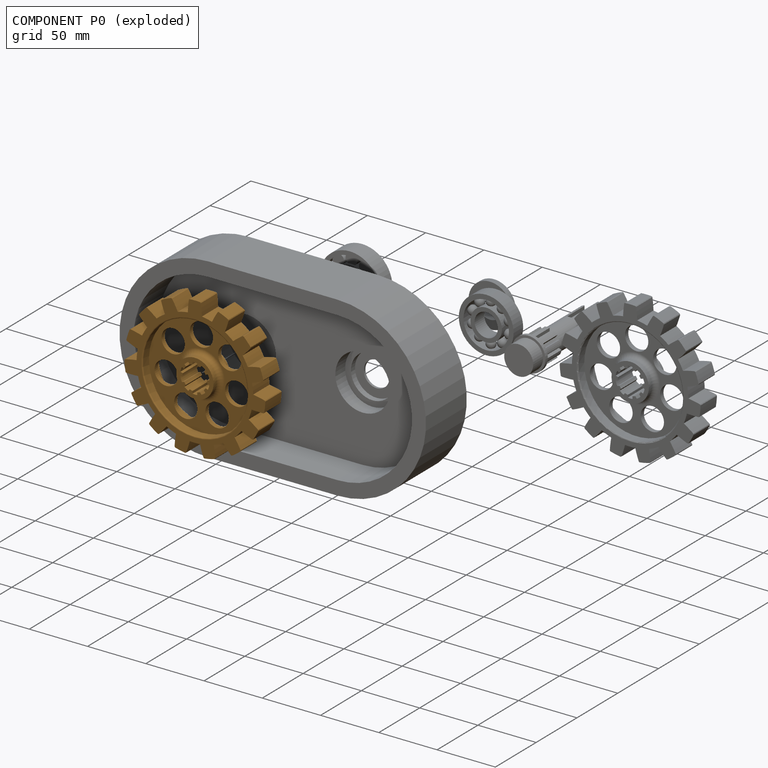
[diagram: component P0 — exploded]
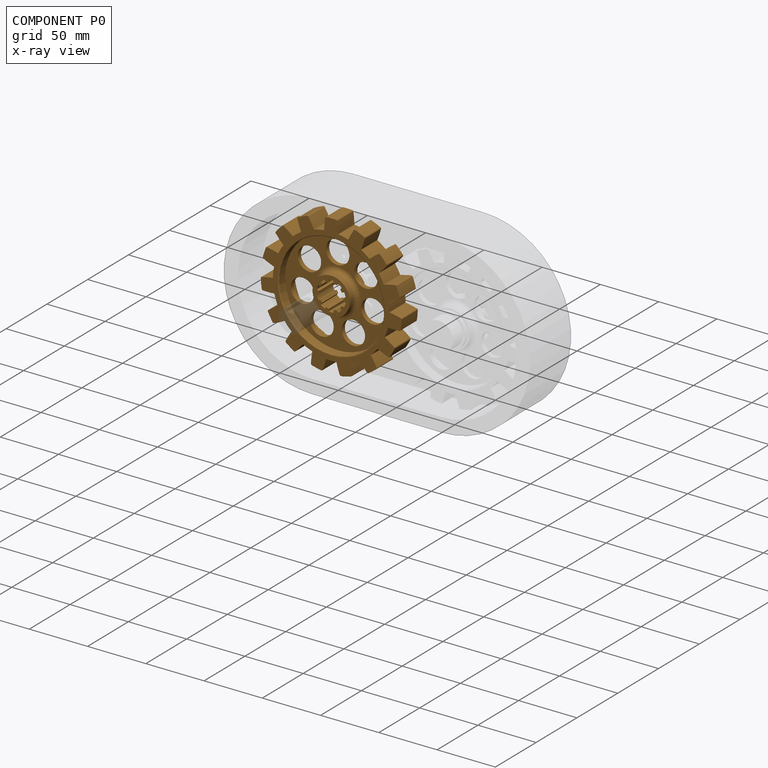
[diagram: component P0 — x-ray view]
COMPONENT P0 — geometry summary (no construction recipe available for this part):
  bounding box: 120.9 x 120.5 x 20.0 mm
  B-rep topology: 1 solid, 151 faces, 884 edges
  volume: 86928 mm^3 (30% of its bounding box)
  symmetry: 2-fold rotationally symmetric about the z axis; mirror-symmetric across its x mid-plane, y mid-plane
Held by: FASTENED mate "Fastened 2" to P3.
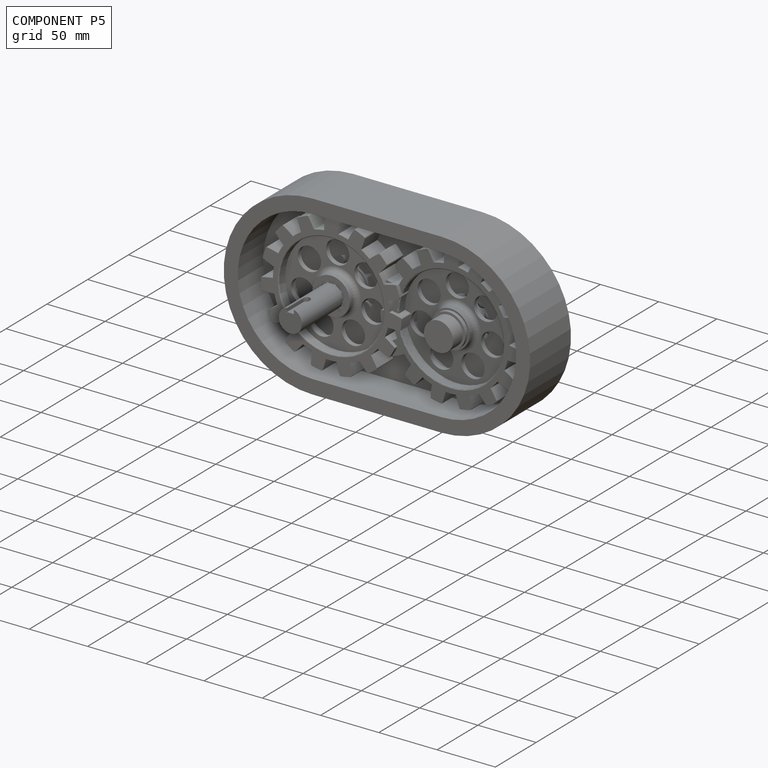
[diagram: component P5 — assembled]
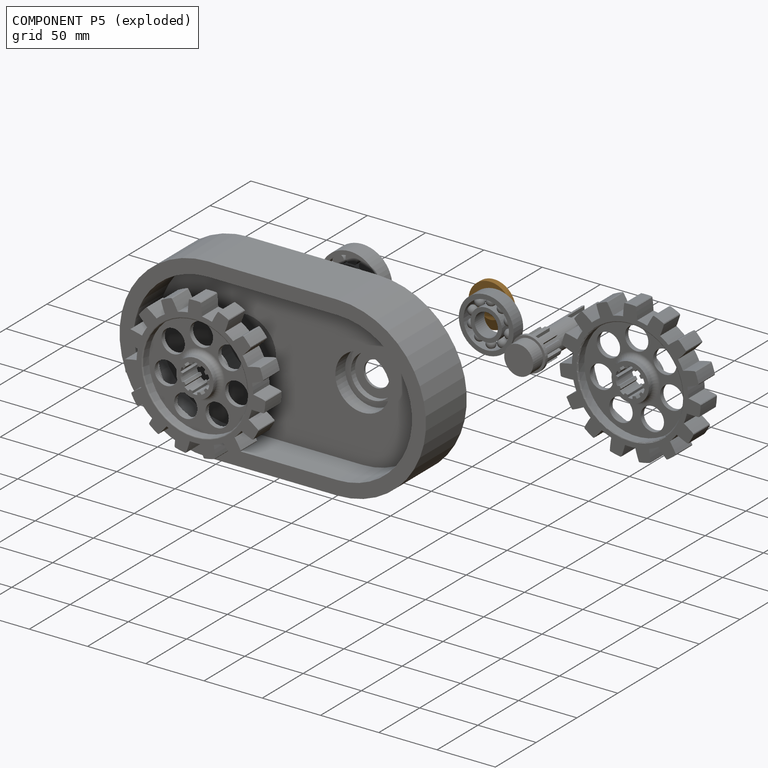
[diagram: component P5 — exploded]
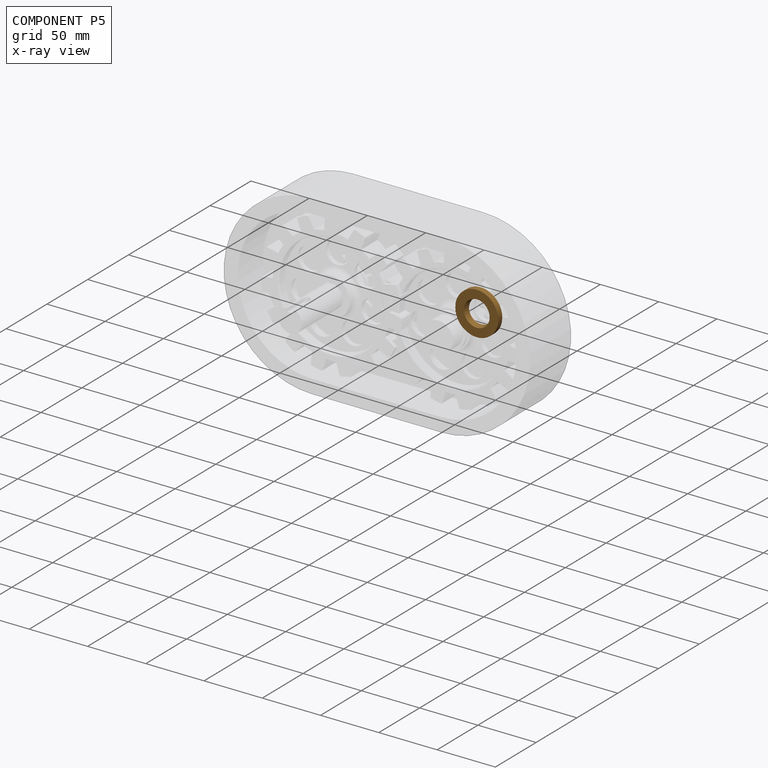
[diagram: component P5 — x-ray view]
COMPONENT P5 — geometry summary (no construction recipe available for this part):
  bounding box: 37.0 x 37.0 x 5.0 mm
  B-rep topology: 1 solid, 8 faces, 24 edges
  volume: 2795 mm^3 (41% of its bounding box)
  symmetry: revolution-symmetric about the x axis through its bounding-box center; mirror-symmetric across its y mid-plane, z mid-plane
Held by: FASTENED mate "Fastened 3" to P4.
PROVENANCE & LICENSES
Assembly (occurrences, transforms, mates, per-part STEP geometry): AutoMate dataset, Zenodo record 7776208, CC0.
Construction recipes: CADFS (HuggingFace VladPyatov/CADFS, CC-BY-4.0, layered over the ABC dataset), FeatureScript reconstruction programs keyed by ABC model id.
Join: ABC meta listings map ABC model id -> Onshape documentId; within a shared document, parts are matched by geometric signature (bounding-box dims + volume at 0.1% relative tolerance, exact B-rep face/solid counts).
Verification: 4 of this assembly's 8 components carry a recipe attachment, and every attachment is mesh-verified: the CADFS STEP and the AutoMate member STEP were compared as meshes in their shared local frame (symmetric sampled-point-to-mesh distance); worst across the 4 attachments: below the mesh-comparison resolution (tessellation chordal tolerance ~0.142 mm) on a 94 mm part.
Renders: orthographic iso camera (az 35 / el 25); the floor grid conveys scale (grid pitch printed in each image; no ruler). In the exploded view each component is displaced by its stored offset vector: the offsets alone carry the explosion direction (mate normal/axis signs are not orientation cues and do not encode it), and separation distances are assigned per mate-chain, not proportionally to assembly-order depth.
